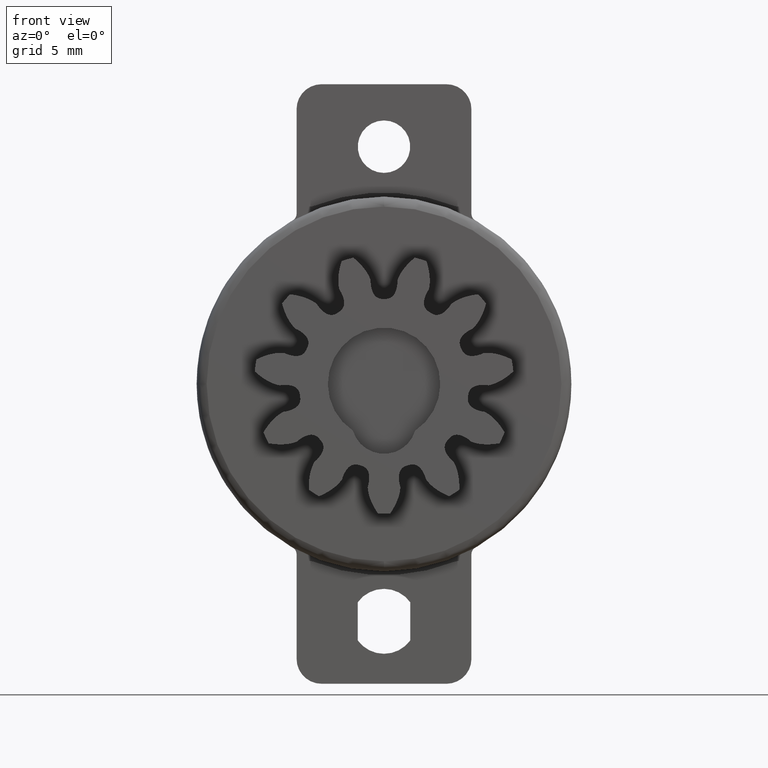
[diagram: clean part render]
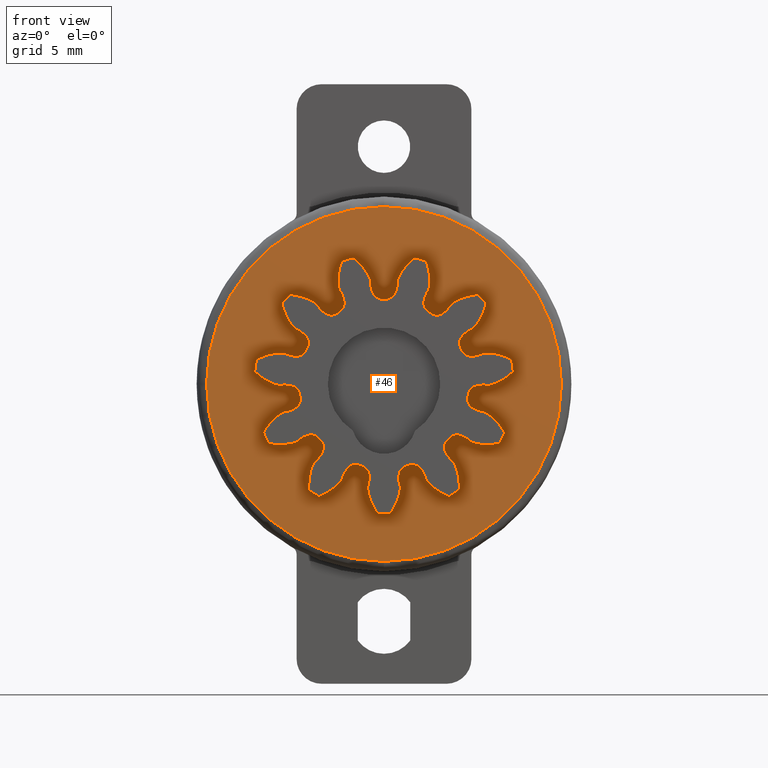
[diagram: same view with one face highlighted and labeled with its STEP entity id]
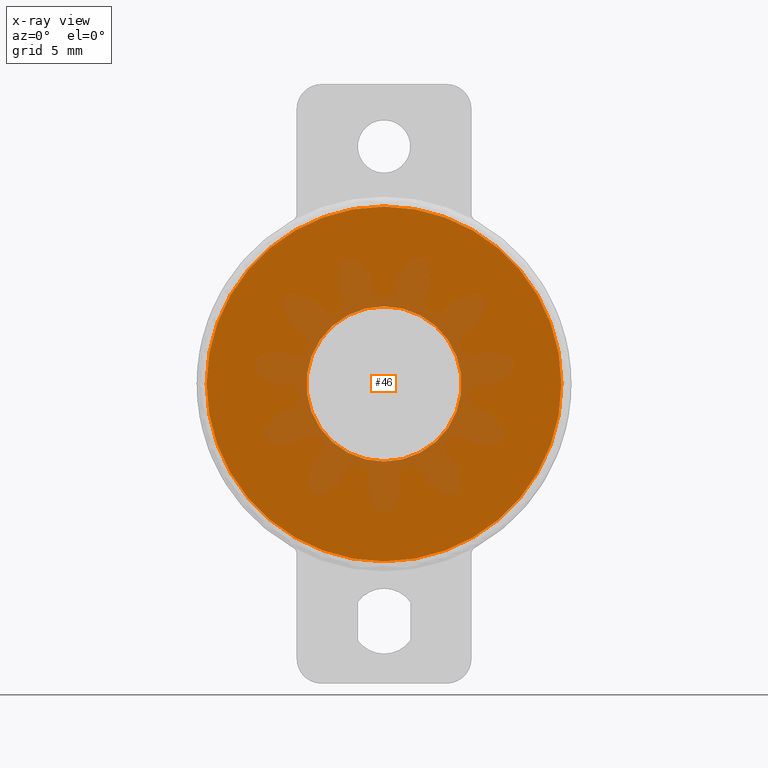
[diagram: x-ray of the same camera — body ghosted, the highlighted face saturated]
A machine part, front view. The second image highlights one B-rep face of the part: STEP entity #46.
The next image is the same camera in x-ray: the body ghosted, the highlighted face saturated — about 22% of this face is hidden behind the body in this view.
In plain terms, the highlighted planar face has unit normal (-0, 1, 0).
Its self-contained STEP definition (entity closure, byte-faithful):
#46=ADVANCED_FACE('',(#748,#749),#747,.F.);
#747=PLANE('',#7168);
#748=FACE_OUTER_BOUND('',#7169,.T.);
#749=FACE_BOUND('',#7170,.T.);
#7165=CARTESIAN_POINT('',(-1.47570728805E+01,-3.40000000000E+00,-9.23000000000E+00));
#7166=DIRECTION('',(-0.00000000000E+00,1.00000000000E+00,0.00000000000E+00));
#7167=DIRECTION('',(0.00000000000E+00,-0.00000000000E+00,1.00000000000E+00));
#7168=AXIS2_PLACEMENT_3D('',#7165,#7166,#7167);
#7169=EDGE_LOOP('',(#10501,#10502));
#7170=EDGE_LOOP('',(#10503,#10504));
#10501=ORIENTED_EDGE('',*,*,#14314,.T.);
#10502=ORIENTED_EDGE('',*,*,#14315,.T.);
#10503=ORIENTED_EDGE('',*,*,#14316,.F.);
#10504=ORIENTED_EDGE('',*,*,#14317,.F.);
#14314=EDGE_CURVE('',#16459,#16460,#16461,.T.);
#14315=EDGE_CURVE('',#16460,#16459,#16467,.T.);
#14316=EDGE_CURVE('',#16473,#16474,#16475,.T.);
#14317=EDGE_CURVE('',#16474,#16473,#16481,.T.);
#16459=VERTEX_POINT('',#29083);
#16460=VERTEX_POINT('',#29084);
#16461=CIRCLE('',#29088,7.10000000000E+00);
#16467=CIRCLE('',#29092,7.10000000000E+00);
#16473=VERTEX_POINT('',#29093);
#16474=VERTEX_POINT('',#29094);
#16475=CIRCLE('',#29098,3.10703740000E+00);
#16481=CIRCLE('',#29102,3.10703740000E+00);
#29083=CARTESIAN_POINT('',(0.00000000000E+00,-3.40000000000E+00,-7.10000000000E+00));
#29084=CARTESIAN_POINT('',(2.96059473233E-16,-3.40000000000E+00,7.10000000000E+00));
#29085=CARTESIAN_POINT('',(0.00000000000E+00,-3.40000000000E+00,0.00000000000E+00));
#29086=DIRECTION('',(0.00000000000E+00,-1.00000000000E+00,-0.00000000000E+00));
#29087=DIRECTION('',(-1.22460635382E-16,0.00000000000E+00,-1.00000000000E+00));
#29088=AXIS2_PLACEMENT_3D('',#29085,#29086,#29087);
#29089=CARTESIAN_POINT('',(0.00000000000E+00,-3.40000000000E+00,0.00000000000E+00));
#29090=DIRECTION('',(0.00000000000E+00,-1.00000000000E+00,-0.00000000000E+00));
#29091=DIRECTION('',(-1.22460635382E-16,0.00000000000E+00,-1.00000000000E+00));
#29092=AXIS2_PLACEMENT_3D('',#29089,#29090,#29091);
#29093=CARTESIAN_POINT('',(-1.48029736617E-16,-3.40000000000E+00,3.10703740000E+00));
#29094=CARTESIAN_POINT('',(0.00000000000E+00,-3.40000000000E+00,-3.10703740000E+00));
#29095=CARTESIAN_POINT('',(0.00000000000E+00,-3.40000000000E+00,0.00000000000E+00));
#29096=DIRECTION('',(0.00000000000E+00,-1.00000000000E+00,-0.00000000000E+00));
#29097=DIRECTION('',(-1.22460635382E-16,0.00000000000E+00,-1.00000000000E+00));
#29098=AXIS2_PLACEMENT_3D('',#29095,#29096,#29097);
#29099=CARTESIAN_POINT('',(0.00000000000E+00,-3.40000000000E+00,0.00000000000E+00));
#29100=DIRECTION('',(0.00000000000E+00,-1.00000000000E+00,-0.00000000000E+00));
#29101=DIRECTION('',(-1.22460635382E-16,0.00000000000E+00,-1.00000000000E+00));
#29102=AXIS2_PLACEMENT_3D('',#29099,#29100,#29101);